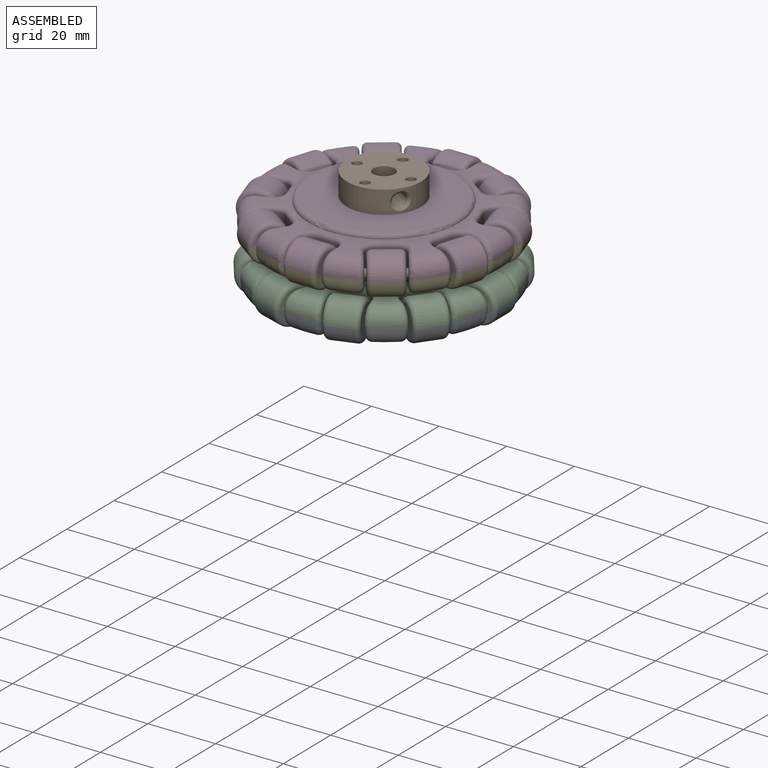
[diagram: assembled view]
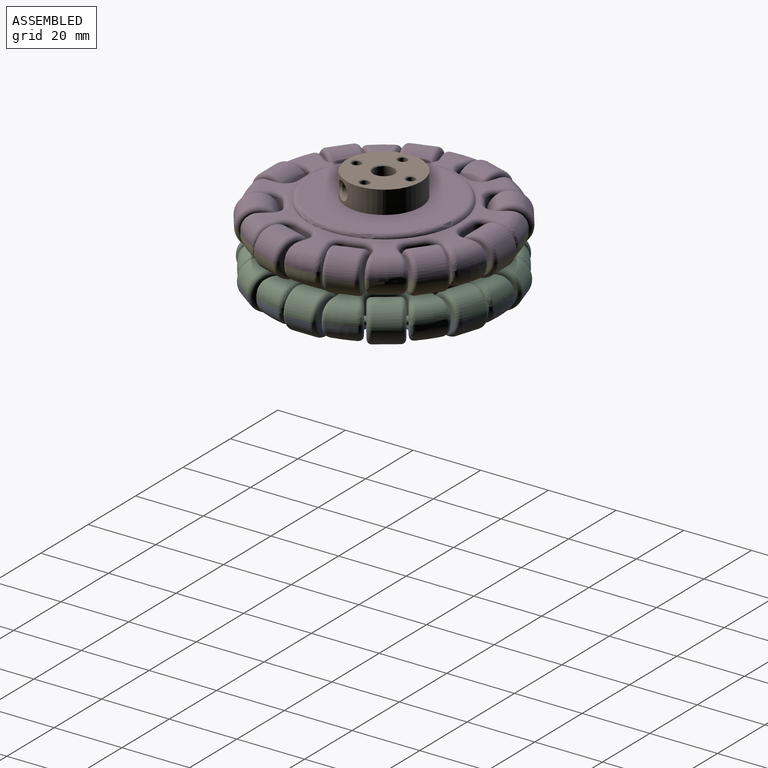
[diagram: assembled view, second angle]
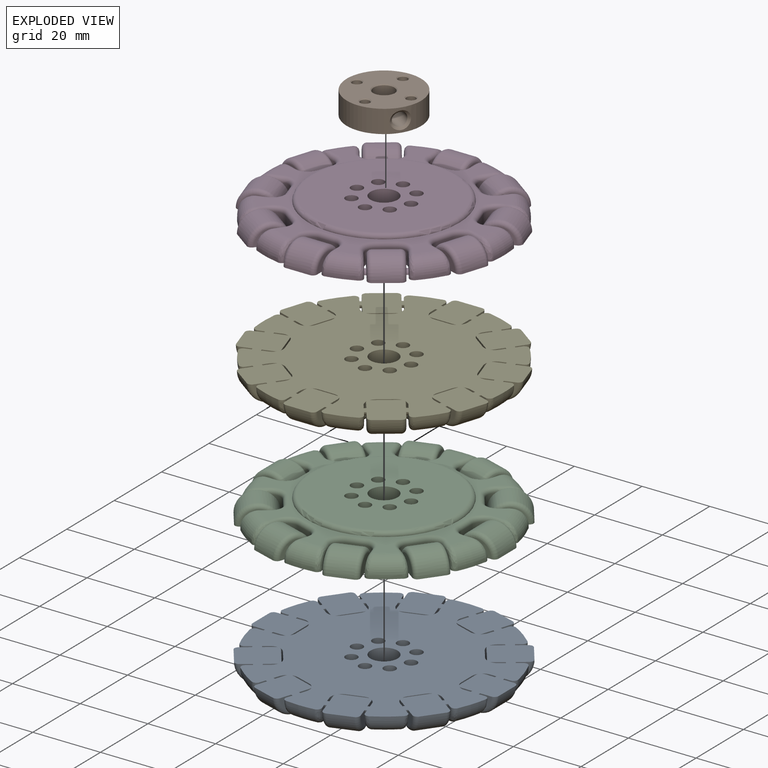
[diagram: exploded view]
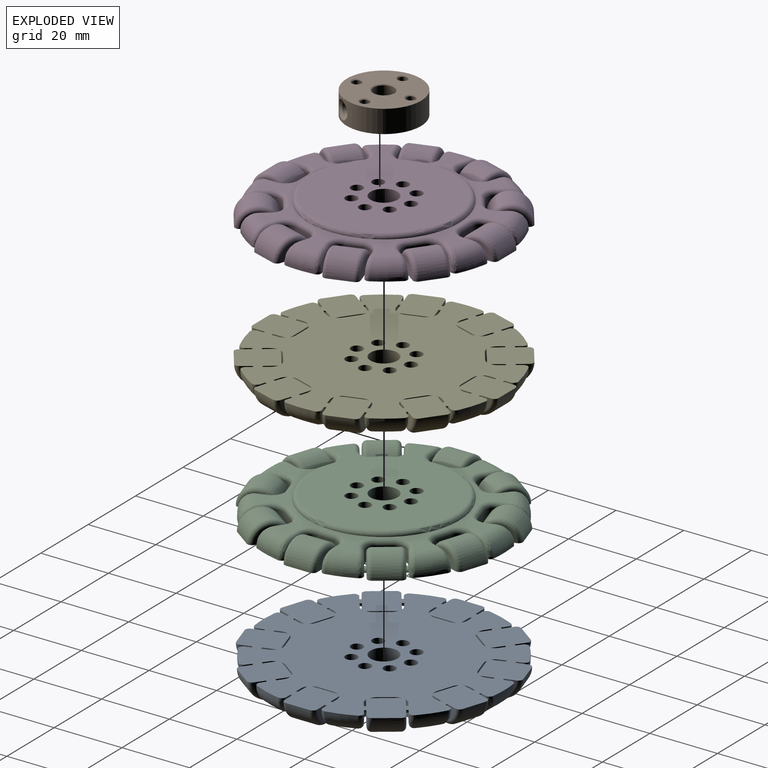
[diagram: exploded view, second angle]
ASSEMBLY  parts=5 mates=4
PART A: 243 faces, bbox 72.3x73.7x6.4 mm
  f0: torus R=20.96mm, axis (0,0,1), area 272.8mm2, adj f1,f80
  f1: plane 62.25x60.78mm, normal (0,0,-1), area 544.8mm2, adj f0,f2,f3,f4,f6,f7,f8,f9
  f2: cylinder r=1.27mm len=4.36mm, axis (0.81,0.59,0), area 8.9mm2, adj f1,f3,f20,f83
  f3: torus R=4.45mm, axis (0,0,1), area 11.4mm2, adj f1,f2,f4,f84
  f4: cylinder r=1.27mm len=2.99mm, axis (0.59,-0.81,0), area 5.5mm2, adj f1,f3,f5,f85
  f5: bspline ~4.45x3.93mm, area 13.7mm2, adj f4,f6,f85,f86
  f6: torus R=31.12mm, axis (0,0,-1), area 51.3mm2, adj f1,f5,f26,f87
  f7: torus R=31.12mm, axis (0,0,-1), area 51.3mm2, adj f1,f18,f33,f90
  f8: torus R=31.12mm, axis (0,0,-1), area 51.3mm2, adj f1,f23,f40,f93
  f9: torus R=31.12mm, axis (0,0,-1), area 51.3mm2, adj f1,f30,f47,f96
  f10: torus R=31.12mm, axis (0,0,-1), area 51.3mm2, adj f1,f37,f54,f99
  f11: torus R=31.12mm, axis (0,0,-1), area 51.3mm2, adj f1,f44,f61,f102
  f12: torus R=31.12mm, axis (0,0,-1), area 51.3mm2, adj f1,f51,f68,f105
  f13: torus R=31.12mm, axis (0,0,-1), area 51.3mm2, adj f1,f58,f71,f108
  f14: torus R=31.12mm, axis (0,0,-1), area 51.3mm2, adj f1,f65,f78,f111
  f15: torus R=31.12mm, axis (0,0,-1), area 51.3mm2, adj f1,f75,f82,f114
  f16: cylinder r=1.27mm len=4.64mm, axis (0.31,0.95,0), area 8.9mm2, adj f1,f17,f27,f120
  f17: torus R=4.45mm, axis (0,0,1), area 11.4mm2, adj f1,f16,f19,f122
  f18: bspline ~4.74x4.45mm, area 13.7mm2, adj f7,f19,f89,f123
  f19: cylinder r=1.27mm len=3.04mm, axis (0.95,-0.31,0), area 5.5mm2, adj f1,f17,f18,f123
  f20: torus R=4.45mm, axis (0,0,1), area 11.4mm2, adj f1,f2,f81,f127
  f21: cylinder r=1.27mm len=4.64mm, axis (-0.31,0.95,0), area 8.9mm2, adj f1,f22,f34,f128
  f22: torus R=4.45mm, axis (0,0,1), area 11.4mm2, adj f1,f21,f24,f130
  f23: bspline ~4.45x4.43mm, area 13.7mm2, adj f8,f24,f92,f131
  f24: cylinder r=1.27mm len=3.04mm, axis (0.95,0.31,0), area 5.5mm2, adj f1,f22,f23,f131
  f25: cylinder r=1.27mm len=3.04mm, axis (-0.95,0.31,0), area 5.5mm2, adj f1,f26,f27,f138
  f26: bspline ~4.45x4.43mm, area 13.7mm2, adj f6,f25,f88,f138
  f27: torus R=4.45mm, axis (0,0,1), area 11.4mm2, adj f1,f16,f25,f139
  f28: cylinder r=1.27mm len=4.36mm, axis (-0.81,0.59,0), area 8.9mm2, adj f1,f29,f41,f140
  f29: torus R=4.45mm, axis (0,0,1), area 11.4mm2, adj f1,f28,f31,f142
  f30: bspline ~4.52x4.45mm, area 13.7mm2, adj f9,f31,f95,f143
  f31: cylinder r=1.27mm len=2.99mm, axis (0.59,0.81,0), area 5.5mm2, adj f1,f29,f30,f143
  f32: cylinder r=1.27mm len=3.04mm, axis (-0.95,-0.31,0), area 5.5mm2, adj f1,f33,f34,f150
  f33: bspline ~4.74x4.45mm, area 13.7mm2, adj f7,f32,f91,f150
  f34: torus R=4.45mm, axis (0,0,1), area 11.4mm2, adj f1,f21,f32,f151
  f35: cylinder r=1.27mm len=4.47mm, axis (-1,0,0), area 8.9mm2, adj f1,f36,f48,f152
  f36: torus R=4.45mm, axis (0,0,1), area 11.4mm2, adj f1,f35,f38,f154
  f37: bspline ~4.54x4.45mm, area 13.7mm2, adj f10,f38,f98,f155
  f38: cylinder r=1.27mm len=2.78mm, axis (0,1,0), area 5.5mm2, adj f1,f36,f37,f155
  f39: cylinder r=1.27mm len=2.99mm, axis (-0.59,-0.81,0), area 5.5mm2, adj f1,f40,f41,f162
  f40: bspline ~4.45x3.93mm, area 13.7mm2, adj f8,f39,f94,f162
  f41: torus R=4.45mm, axis (0,0,1), area 11.4mm2, adj f1,f28,f39,f163
  f42: cylinder r=1.27mm len=4.36mm, axis (-0.81,-0.59,0), area 8.9mm2, adj f1,f43,f55,f164
  f43: torus R=4.45mm, axis (0,0,1), area 11.4mm2, adj f1,f42,f45,f166
  f44: bspline ~4.45x3.93mm, area 13.7mm2, adj f11,f45,f101,f167
  f45: cylinder r=1.27mm len=2.99mm, axis (-0.59,0.81,0), area 5.5mm2, adj f1,f43,f44,f167
  f46: cylinder r=1.27mm len=2.78mm, axis (0,-1,0), area 5.5mm2, adj f1,f47,f48,f174
  f47: bspline ~4.54x4.45mm, area 13.7mm2, adj f9,f46,f97,f174
  f48: torus R=4.45mm, axis (0,0,1), area 11.4mm2, adj f1,f35,f46,f175
  f49: cylinder r=1.27mm len=4.64mm, axis (-0.31,-0.95,0), area 8.9mm2, adj f1,f50,f62,f176
  f50: torus R=4.45mm, axis (0,0,1), area 11.4mm2, adj f1,f49,f52,f178
  f51: bspline ~4.74x4.45mm, area 13.7mm2, adj f12,f52,f104,f179
  f52: cylinder r=1.27mm len=3.04mm, axis (-0.95,0.31,0), area 5.5mm2, adj f1,f50,f51,f179
  f53: cylinder r=1.27mm len=2.99mm, axis (0.59,-0.81,0), area 5.5mm2, adj f1,f54,f55,f186
  f54: bspline ~4.52x4.45mm, area 13.7mm2, adj f10,f53,f100,f186
  f55: torus R=4.45mm, axis (0,0,1), area 11.4mm2, adj f1,f42,f53,f187
  f56: cylinder r=1.27mm len=4.64mm, axis (0.31,-0.95,0), area 8.9mm2, adj f1,f57,f69,f188
  f57: torus R=4.45mm, axis (0,0,1), area 11.4mm2, adj f1,f56,f59,f190
  f58: bspline ~4.45x4.43mm, area 13.7mm2, adj f13,f59,f107,f191
  f59: cylinder r=1.27mm len=3.04mm, axis (-0.95,-0.31,0), area 5.5mm2, adj f1,f57,f58,f191
  f60: cylinder r=1.27mm len=3.04mm, axis (0.95,-0.31,0), area 5.5mm2, adj f1,f61,f62,f198
  f61: bspline ~4.45x4.43mm, area 13.7mm2, adj f11,f60,f103,f198
  f62: torus R=4.45mm, axis (0,0,1), area 11.4mm2, adj f1,f49,f60,f199
  f63: cylinder r=1.27mm len=4.36mm, axis (0.81,-0.59,0), area 8.9mm2, adj f1,f64,f72,f200
  f64: torus R=4.45mm, axis (0,0,1), area 11.4mm2, adj f1,f63,f66,f202
  f65: bspline ~4.52x4.45mm, area 13.7mm2, adj f14,f66,f110,f203
  f66: cylinder r=1.27mm len=2.99mm, axis (-0.59,-0.81,0), area 5.5mm2, adj f1,f64,f65,f203
  f67: cylinder r=1.27mm len=3.04mm, axis (0.95,0.31,0), area 5.5mm2, adj f1,f68,f69,f210
  f68: bspline ~4.74x4.45mm, area 13.7mm2, adj f12,f67,f106,f210
  f69: torus R=4.45mm, axis (0,0,1), area 11.4mm2, adj f1,f56,f67,f211
  f70: cylinder r=1.27mm len=2.99mm, axis (0.59,0.81,0), area 5.5mm2, adj f1,f71,f72,f215
  f71: bspline ~4.45x3.93mm, area 13.7mm2, adj f13,f70,f109,f215
  f72: torus R=4.45mm, axis (0,0,1), area 11.4mm2, adj f1,f63,f70,f216
  f73: cylinder r=1.27mm len=4.47mm, axis (1,0,0), area 8.9mm2, adj f1,f74,f79,f217
  f74: torus R=4.45mm, axis (0,0,1), area 11.4mm2, adj f1,f73,f76,f219
  f75: bspline ~4.54x4.45mm, area 13.7mm2, adj f15,f76,f113,f220
  f76: cylinder r=1.27mm len=2.78mm, axis (0,-1,0), area 5.5mm2, adj f1,f74,f75,f220
  f77: cylinder r=1.27mm len=2.78mm, axis (0,1,0), area 5.5mm2, adj f1,f78,f79,f227
  f78: bspline ~4.54x4.45mm, area 13.7mm2, adj f14,f77,f112,f227
  f79: torus R=4.45mm, axis (0,0,1), area 11.4mm2, adj f1,f73,f77,f228
  f80: plane 42.69x41.91mm, normal (0,0,-1), area 1253.1mm2, adj f0,f229,f230,f231,f232,f233,f234,f235
  f81: cylinder r=1.27mm len=2.99mm, axis (-0.59,0.81,0), area 5.5mm2, adj f1,f20,f82,f238
  f82: bspline ~4.52x4.45mm, area 13.7mm2, adj f15,f81,f115,f238
  f83: plane 3.81x3.62mm, normal (-0.59,0.81,0), area 17mm2, adj f2,f84,f127,f240
  f84: cylinder r=3.17mm len=4.44mm, axis (0,0,1), area 18.3mm2, adj f3,f83,f85,f117,f240
  f85: plane 4.87x3.81mm, normal (0.81,0.59,0), area 18.5mm2, adj f4,f5,f84,f86,f119,f240
  f86: cylinder r=1.27mm len=1.96mm, axis (0,0,-1), area 1.4mm2, adj f5,f85,f87,f240
  f87: cylinder r=35.56mm len=6.78mm, axis (0,0,1), area 5.3mm2, adj f6,f86,f88,f240
  f88: cylinder r=1.27mm len=1.83mm, axis (0,0,1), area 1.4mm2, adj f26,f87,f138,f240
  f89: cylinder r=1.27mm len=1.65mm, axis (0,0,-1), area 1.4mm2, adj f18,f90,f123,f240
  f90: cylinder r=35.56mm len=8.38mm, axis (0,0,1), area 5.3mm2, adj f7,f89,f91,f240
  f91: cylinder r=1.27mm len=1.65mm, axis (0,0,1), area 1.4mm2, adj f33,f90,f150,f240
  f92: cylinder r=1.27mm len=1.83mm, axis (0,0,-1), area 1.4mm2, adj f23,f93,f131,f240
  f93: cylinder r=35.56mm len=6.78mm, axis (0,0,1), area 5.3mm2, adj f8,f92,f94,f240
  f94: cylinder r=1.27mm len=1.96mm, axis (0,0,1), area 1.4mm2, adj f40,f93,f162,f240
  f95: cylinder r=1.27mm len=1.9mm, axis (0,0,-1), area 1.4mm2, adj f30,f96,f143,f240
  f96: cylinder r=35.56mm len=7.97mm, axis (0,0,1), area 5.3mm2, adj f9,f95,f97,f240
  f97: cylinder r=1.27mm len=1.52mm, axis (0,0,1), area 1.4mm2, adj f47,f96,f174,f240
  f98: cylinder r=1.27mm len=1.52mm, axis (0,0,-1), area 1.4mm2, adj f37,f99,f155,f240
  f99: cylinder r=35.56mm len=7.97mm, axis (0,0,1), area 5.3mm2, adj f10,f98,f100,f240
  f100: cylinder r=1.27mm len=1.9mm, axis (0,0,1), area 1.4mm2, adj f54,f99,f186,f240
  f101: cylinder r=1.27mm len=1.96mm, axis (0,0,-1), area 1.4mm2, adj f44,f102,f167,f240
  f102: cylinder r=35.56mm len=6.78mm, axis (0,0,1), area 5.3mm2, adj f11,f101,f103,f240
  f103: cylinder r=1.27mm len=1.83mm, axis (0,0,1), area 1.4mm2, adj f61,f102,f198,f240
  f104: cylinder r=1.27mm len=1.65mm, axis (0,0,-1), area 1.4mm2, adj f51,f105,f179,f240
  f105: cylinder r=35.56mm len=8.38mm, axis (0,0,1), area 5.3mm2, adj f12,f104,f106,f240
  f106: cylinder r=1.27mm len=1.65mm, axis (0,0,1), area 1.4mm2, adj f68,f105,f210,f240
  f107: cylinder r=1.27mm len=1.83mm, axis (0,0,-1), area 1.4mm2, adj f58,f108,f191,f240
  f108: cylinder r=35.56mm len=6.78mm, axis (0,0,1), area 5.3mm2, adj f13,f107,f109,f240
  f109: cylinder r=1.27mm len=1.96mm, axis (0,0,1), area 1.4mm2, adj f71,f108,f215,f240
  f110: cylinder r=1.27mm len=1.9mm, axis (0,0,-1), area 1.4mm2, adj f65,f111,f203,f240
  f111: cylinder r=35.56mm len=7.97mm, axis (0,0,1), area 5.3mm2, adj f14,f110,f112,f240
  f112: cylinder r=1.27mm len=1.52mm, axis (0,0,1), area 1.4mm2, adj f78,f111,f227,f240
  f113: cylinder r=1.27mm len=1.52mm, axis (0,0,-1), area 1.4mm2, adj f75,f114,f220,f240
  f114: cylinder r=35.56mm len=7.97mm, axis (0,0,1), area 5.3mm2, adj f15,f113,f115,f240
  f115: cylinder r=1.27mm len=1.9mm, axis (0,0,1), area 1.4mm2, adj f82,f114,f238,f240
  f116: cylinder r=5.75mm len=13.46mm, axis (-0.81,-0.59,0), area 127.8mm2, adj f117,f239,f240
  f117: torus R=4.48mm, axis (-0.81,-0.59,0), area 32.4mm2, adj f84,f116,f118,f240
  f118: plane 7.25x5.26mm, normal (-0.81,-0.59,0), area 29.3mm2, adj f117,f119,f240
  f119: cylinder r=1.19mm len=2.27mm, axis (-0.81,-0.59,0), area 2.2mm2, adj f85,f118,f240
  f120: plane 4.25x3.81mm, normal (-0.95,0.31,0), area 17mm2, adj f16,f122,f139,f240
  f121: cylinder r=5.75mm len=13.12mm, axis (-0.31,-0.95,0), area 127.8mm2, adj f126,f135,f240
  f122: cylinder r=3.17mm len=4mm, axis (0,0,1), area 18.3mm2, adj f17,f120,f123,f126,f240
  f123: plane 5.73x3.81mm, normal (0.31,0.95,0), area 18.5mm2, adj f18,f19,f89,f122,f124,f240
  f124: cylinder r=1.19mm len=2.45mm, axis (-0.31,-0.95,0), area 2.2mm2, adj f123,f125,f240
  f125: plane 8.52x4.51mm, normal (-0.31,-0.95,0), area 29.3mm2, adj f124,f126,f240
  f126: torus R=4.48mm, axis (-0.31,-0.95,0), area 32.3mm2, adj f121,f122,f125,f240
  f127: cylinder r=3.17mm len=4.44mm, axis (0,0,1), area 18.3mm2, adj f20,f83,f238,f239,f240
  f128: plane 4.25x3.81mm, normal (-0.95,-0.31,0), area 17mm2, adj f21,f130,f151,f240
  f129: cylinder r=5.75mm len=13.12mm, axis (0.31,-0.95,0), area 127.8mm2, adj f134,f147,f240
  f130: cylinder r=3.17mm len=4mm, axis (0,0,1), area 18.3mm2, adj f22,f128,f131,f134,f240
  f131: plane 5.73x3.81mm, normal (-0.31,0.95,0), area 18.5mm2, adj f23,f24,f92,f130,f132,f240
  f132: cylinder r=1.19mm len=2.45mm, axis (0.31,-0.95,0), area 2.2mm2, adj f131,f133,f240
  f133: plane 8.52x4.51mm, normal (0.31,-0.95,0), area 29.3mm2, adj f132,f134,f240
  f134: torus R=4.48mm, axis (0.31,-0.95,0), area 32.4mm2, adj f129,f130,f133,f240
  f135: torus R=4.48mm, axis (-0.31,-0.95,0), area 32.4mm2, adj f121,f136,f139,f240
  f136: plane 8.52x4.56mm, normal (0.31,0.95,0), area 29.3mm2, adj f135,f137,f240
  f137: cylinder r=1.19mm len=2.45mm, axis (-0.31,-0.95,0), area 2.2mm2, adj f136,f138,f240
  f138: plane 5.73x3.81mm, normal (-0.31,-0.95,0), area 18.5mm2, adj f25,f26,f88,f137,f139,f240
  f139: cylinder r=3.17mm len=4mm, axis (0,0,1), area 18.3mm2, adj f27,f120,f135,f138,f240
  f140: plane 3.81x3.62mm, normal (-0.59,-0.81,0), area 17mm2, adj f28,f142,f163,f240
  f141: cylinder r=5.75mm len=13.46mm, axis (0.81,-0.59,0), area 127.8mm2, adj f146,f159,f240
  f142: cylinder r=3.17mm len=4.44mm, axis (0,0,1), area 18.3mm2, adj f29,f140,f143,f146,f240
  f143: plane 4.87x3.81mm, normal (-0.81,0.59,0), area 18.5mm2, adj f30,f31,f95,f142,f144,f240
  f144: cylinder r=1.19mm len=2.27mm, axis (0.81,-0.59,0), area 2.2mm2, adj f143,f145,f240
  f145: plane 7.25x5.26mm, normal (0.81,-0.59,0), area 29.3mm2, adj f144,f146,f240
  f146: torus R=4.48mm, axis (0.81,-0.59,0), area 32.3mm2, adj f141,f142,f145,f240
  f147: torus R=4.48mm, axis (0.31,-0.95,0), area 32.4mm2, adj f129,f148,f151,f240
  f148: plane 8.52x4.56mm, normal (-0.31,0.95,0), area 29.3mm2, adj f147,f149,f240
  f149: cylinder r=1.19mm len=2.45mm, axis (0.31,-0.95,0), area 2.2mm2, adj f148,f150,f240
  f150: plane 5.73x3.81mm, normal (0.31,-0.95,0), area 18.5mm2, adj f32,f33,f91,f149,f151,f240
  f151: cylinder r=3.17mm len=4mm, axis (0,0,1), area 18.3mm2, adj f34,f128,f147,f150,f240
  f152: plane 4.47x3.81mm, normal (0,-1,0), area 17mm2, adj f35,f154,f175,f240
  f153: cylinder r=5.75mm len=11.5mm, axis (1,0,0), area 127.8mm2, adj f158,f171,f240
  f154: cylinder r=3.17mm len=3.81mm, axis (0,0,1), area 18.3mm2, adj f36,f152,f155,f158,f240
  f155: plane 6.02x3.81mm, normal (-1,0,0), area 18.5mm2, adj f37,f38,f98,f154,f156,f240
  f156: cylinder r=1.19mm len=2.38mm, axis (1,0,0), area 2.2mm2, adj f155,f157,f240
  f157: plane 8.96x4.51mm, normal (1,0,0), area 29.3mm2, adj f156,f158,f240
  f158: torus R=4.48mm, axis (1,0,0), area 32.4mm2, adj f153,f154,f157,f240
  f159: torus R=4.48mm, axis (0.81,-0.59,0), area 32.4mm2, adj f141,f160,f163,f240
  f160: plane 7.25x5.26mm, normal (-0.81,0.59,0), area 29.3mm2, adj f159,f161,f240
  f161: cylinder r=1.19mm len=2.27mm, axis (0.81,-0.59,0), area 2.2mm2, adj f160,f162,f240
  f162: plane 4.87x3.81mm, normal (0.81,-0.59,0), area 18.5mm2, adj f39,f40,f94,f161,f163,f240
  f163: cylinder r=3.17mm len=4.44mm, axis (0,0,1), area 18.3mm2, adj f41,f140,f159,f162,f240
  f164: plane 3.81x3.62mm, normal (0.59,-0.81,0), area 17mm2, adj f42,f166,f187,f240
  f165: cylinder r=5.75mm len=13.46mm, axis (0.81,0.59,0), area 127.8mm2, adj f170,f183,f240
  f166: cylinder r=3.17mm len=4.44mm, axis (0,0,1), area 18.3mm2, adj f43,f164,f167,f170,f240
  f167: plane 4.87x3.81mm, normal (-0.81,-0.59,0), area 18.5mm2, adj f44,f45,f101,f166,f168,f240
  f168: cylinder r=1.19mm len=2.27mm, axis (0.81,0.59,0), area 2.2mm2, adj f167,f169,f240
  f169: plane 7.25x5.26mm, normal (0.81,0.59,0), area 29.3mm2, adj f168,f170,f240
  f170: torus R=4.48mm, axis (0.81,0.59,0), area 32.4mm2, adj f165,f166,f169,f240
  f171: torus R=4.48mm, axis (1,0,0), area 32.4mm2, adj f153,f172,f175,f240
  f172: plane 8.96x4.56mm, normal (-1,0,0), area 29.3mm2, adj f171,f173,f240
  f173: cylinder r=1.19mm len=2.38mm, axis (1,0,0), area 2.2mm2, adj f172,f174,f240
  f174: plane 6.02x3.81mm, normal (1,0,0), area 18.5mm2, adj f46,f47,f97,f173,f175,f240
  f175: cylinder r=3.17mm len=3.81mm, axis (0,0,1), area 18.3mm2, adj f48,f152,f171,f174,f240
  f176: plane 4.25x3.81mm, normal (0.95,-0.31,0), area 17mm2, adj f49,f178,f199,f240
  f177: cylinder r=5.75mm len=13.12mm, axis (0.31,0.95,0), area 127.8mm2, adj f182,f195,f240
  f178: cylinder r=3.17mm len=4mm, axis (0,0,1), area 18.3mm2, adj f50,f176,f179,f182,f240
  f179: plane 5.73x3.81mm, normal (-0.31,-0.95,0), area 18.5mm2, adj f51,f52,f104,f178,f180,f240
  f180: cylinder r=1.19mm len=2.45mm, axis (0.31,0.95,0), area 2.2mm2, adj f179,f181,f240
  f181: plane 8.52x4.51mm, normal (0.31,0.95,0), area 29.3mm2, adj f180,f182,f240
  f182: torus R=4.48mm, axis (0.31,0.95,0), area 32.3mm2, adj f177,f178,f181,f240
  f183: torus R=4.48mm, axis (0.81,0.59,0), area 32.4mm2, adj f165,f184,f187,f240
  f184: plane 7.25x5.26mm, normal (-0.81,-0.59,0), area 29.3mm2, adj f183,f185,f240
  f185: cylinder r=1.19mm len=2.27mm, axis (0.81,0.59,0), area 2.2mm2, adj f184,f186,f240
  f186: plane 4.87x3.81mm, normal (0.81,0.59,0), area 18.5mm2, adj f53,f54,f100,f185,f187,f240
  f187: cylinder r=3.17mm len=4.44mm, axis (0,0,1), area 18.3mm2, adj f55,f164,f183,f186,f240
  f188: plane 4.25x3.81mm, normal (0.95,0.31,0), area 17mm2, adj f56,f190,f211,f240
  f189: cylinder r=5.75mm len=13.12mm, axis (-0.31,0.95,0), area 127.8mm2, adj f194,f207,f240
  f190: cylinder r=3.17mm len=4mm, axis (0,0,1), area 18.3mm2, adj f57,f188,f191,f194,f240
  f191: plane 5.73x3.81mm, normal (0.31,-0.95,0), area 18.5mm2, adj f58,f59,f107,f190,f192,f240
  f192: cylinder r=1.19mm len=2.45mm, axis (-0.31,0.95,0), area 2.2mm2, adj f191,f193,f240
  f193: plane 8.52x4.51mm, normal (-0.31,0.95,0), area 29.3mm2, adj f192,f194,f240
  f194: torus R=4.48mm, axis (-0.31,0.95,0), area 32.4mm2, adj f189,f190,f193,f240
  f195: torus R=4.48mm, axis (0.31,0.95,0), area 32.4mm2, adj f177,f196,f199,f240
  f196: plane 8.52x4.56mm, normal (-0.31,-0.95,0), area 29.3mm2, adj f195,f197,f240
  f197: cylinder r=1.19mm len=2.45mm, axis (0.31,0.95,0), area 2.2mm2, adj f196,f198,f240
  f198: plane 5.73x3.81mm, normal (0.31,0.95,0), area 18.5mm2, adj f60,f61,f103,f197,f199,f240
  f199: cylinder r=3.17mm len=4mm, axis (0,0,1), area 18.3mm2, adj f62,f176,f195,f198,f240
  f200: plane 3.81x3.62mm, normal (0.59,0.81,0), area 17mm2, adj f63,f202,f216,f240
  f201: cylinder r=5.75mm len=13.46mm, axis (-0.81,0.59,0), area 127.8mm2, adj f206,f212,f240
  f202: cylinder r=3.17mm len=4.44mm, axis (0,0,1), area 18.3mm2, adj f64,f200,f203,f206,f240
  f203: plane 4.87x3.81mm, normal (0.81,-0.59,0), area 18.5mm2, adj f65,f66,f110,f202,f204,f240
  f204: cylinder r=1.19mm len=2.27mm, axis (-0.81,0.59,0), area 2.2mm2, adj f203,f205,f240
  f205: plane 7.25x5.26mm, normal (-0.81,0.59,0), area 29.3mm2, adj f204,f206,f240
  f206: torus R=4.48mm, axis (-0.81,0.59,0), area 32.3mm2, adj f201,f202,f205,f240
  f207: torus R=4.48mm, axis (-0.31,0.95,0), area 32.4mm2, adj f189,f208,f211,f240
  f208: plane 8.52x4.56mm, normal (0.31,-0.95,0), area 29.3mm2, adj f207,f209,f240
  f209: cylinder r=1.19mm len=2.45mm, axis (-0.31,0.95,0), area 2.2mm2, adj f208,f210,f240
  f210: plane 5.73x3.81mm, normal (-0.31,0.95,0), area 18.5mm2, adj f67,f68,f106,f209,f211,f240
  f211: cylinder r=3.17mm len=4mm, axis (0,0,1), area 18.3mm2, adj f69,f188,f207,f210,f240
  f212: torus R=4.48mm, axis (-0.81,0.59,0), area 32.4mm2, adj f201,f213,f216,f240
  f213: plane 7.25x5.26mm, normal (0.81,-0.59,0), area 29.3mm2, adj f212,f214,f240
  f214: cylinder r=1.19mm len=2.27mm, axis (-0.81,0.59,0), area 2.2mm2, adj f213,f215,f240
  f215: plane 4.87x3.81mm, normal (-0.81,0.59,0), area 18.5mm2, adj f70,f71,f109,f214,f216,f240
  f216: cylinder r=3.17mm len=4.44mm, axis (0,0,1), area 18.3mm2, adj f72,f200,f212,f215,f240
  f217: plane 4.47x3.81mm, normal (0,1,0), area 17mm2, adj f73,f219,f228,f240
  f218: cylinder r=5.75mm len=11.5mm, axis (-1,0,0), area 127.8mm2, adj f223,f224,f240
  f219: cylinder r=3.17mm len=3.81mm, axis (0,0,1), area 18.3mm2, adj f74,f217,f220,f223,f240
  f220: plane 6.02x3.81mm, normal (1,0,0), area 18.5mm2, adj f75,f76,f113,f219,f221,f240
  f221: cylinder r=1.19mm len=2.38mm, axis (-1,0,0), area 2.2mm2, adj f220,f222,f240
  f222: plane 8.96x4.51mm, normal (-1,0,0), area 29.3mm2, adj f221,f223,f240
  f223: torus R=4.48mm, axis (-1,0,0), area 32.6mm2, adj f218,f219,f222,f240
  f224: torus R=4.48mm, axis (-1,0,0), area 32.5mm2, adj f218,f225,f228,f240
  f225: plane 8.96x4.56mm, normal (1,0,0), area 29.3mm2, adj f224,f226,f240
  f226: cylinder r=1.19mm len=2.38mm, axis (-1,0,0), area 2.2mm2, adj f225,f227,f240
  f227: plane 6.02x3.81mm, normal (-1,0,0), area 18.5mm2, adj f77,f78,f112,f226,f228,f240
  f228: cylinder r=3.17mm len=3.81mm, axis (0,0,1), area 18.3mm2, adj f79,f217,f224,f227,f240
  f229: cylinder r=1.74mm len=6.35mm, axis (0,0,-1), area 69.4mm2, adj f80,f240
  f230: cylinder r=1.74mm len=6.35mm, axis (0,0,-1), area 69.4mm2, adj f80,f240
  f231: cylinder r=1.74mm len=6.35mm, axis (0,0,-1), area 69.4mm2, adj f80,f240
  f232: cylinder r=1.74mm len=6.35mm, axis (0,0,-1), area 69.4mm2, adj f80,f240
  f233: cylinder r=1.74mm len=6.35mm, axis (0,0,-1), area 69.4mm2, adj f80,f240
  f234: cylinder r=1.74mm len=6.35mm, axis (0,0,-1), area 69.4mm2, adj f80,f240
  f235: cylinder r=1.74mm len=6.35mm, axis (0,0,-1), area 69.4mm2, adj f80,f240
  f236: cylinder r=1.74mm len=6.35mm, axis (0,0,-1), area 69.4mm2, adj f80,f240
  f237: cylinder r=4mm len=8mm, axis (0,0,-1), area 159.6mm2, adj f80,f240
  f238: plane 4.87x3.81mm, normal (-0.81,-0.59,0), area 18.5mm2, adj f81,f82,f115,f127,f240,f241
  f239: torus R=4.48mm, axis (-0.81,-0.59,0), area 32.4mm2, adj f116,f127,f240,f242
  f240: plane 72.74x71.54mm, normal (0,0,1), area 3810.3mm2, adj f83,f84,f85,f86,f87,f88,f89,f90
  f241: cylinder r=1.19mm len=2.27mm, axis (-0.81,-0.59,0), area 2.2mm2, adj f238,f240,f242
  f242: plane 7.25x5.26mm, normal (0.81,0.59,0), area 29.3mm2, adj f239,f240,f241
PART B: 24 faces, bbox 22.4x22.2x9.5 mm
  f0: cylinder r=3.05mm len=9mm, axis (0,0,-1), area 160.3mm2, adj f1,f2,f3
  f1: cone r=3.3mm half-angle=45deg, axis (0,0,1), area 7.1mm2, adj f0,f4
  f2: cone r=3.3mm half-angle=45deg, axis (0,0,-1), area 7.1mm2, adj f0,f9
  f3: cylinder r=2.02mm len=9.01mm, axis (0.84,0.54,0), area 95.6mm2, adj f0,f10,f11
  f4: plane 7.6x7.5mm, normal (0,0,1), area 10mm2, adj f1,f12
  f5: cone r=1.6mm half-angle=45deg, axis (0,0,-1), area 3.3mm2, adj f9,f13
  f6: cone r=1.6mm half-angle=45deg, axis (0,0,-1), area 3.3mm2, adj f9,f14
  f7: cone r=1.6mm half-angle=45deg, axis (0,0,-1), area 3.3mm2, adj f9,f15
  f8: cone r=1.6mm half-angle=45deg, axis (0,0,-1), area 3.3mm2, adj f9,f16
  f9: plane 22.41x22.2mm, normal (0,0,-1), area 313.7mm2, adj f2,f5,f6,f7,f8,f17
  f10: bspline ~4.65x3.1mm, area 6.7mm2, adj f3,f11,f17
  f11: bspline ~4.65x3.1mm, area 6.7mm2, adj f3,f10,f17
  f12: cone r=4mm half-angle=45deg, axis (0,0,-1), area 8.6mm2, adj f4,f18
  f13: cylinder r=1.35mm len=6.25mm, axis (0,0,-1), area 53.1mm2, adj f5,f19
  f14: cylinder r=1.35mm len=6.25mm, axis (0,0,-1), area 53.1mm2, adj f6,f20
  f15: cylinder r=1.35mm len=6.25mm, axis (0,0,-1), area 53.1mm2, adj f7,f21
  f16: cylinder r=1.35mm len=6.25mm, axis (0,0,-1), area 53.1mm2, adj f8,f22
  f17: cylinder r=11mm len=22mm, axis (0,0,1), area 466.5mm2, adj f9,f10,f11,f23
  f18: cylinder r=4mm len=8mm, axis (0,0,1), area 62.8mm2, adj f12,f23
  f19: cone r=1.6mm half-angle=45deg, axis (0,0,1), area 3.3mm2, adj f13,f23
  f20: cone r=1.6mm half-angle=45deg, axis (0,0,1), area 3.3mm2, adj f14,f23
  f21: cone r=1.6mm half-angle=45deg, axis (0,0,1), area 3.3mm2, adj f15,f23
  f22: cone r=1.6mm half-angle=45deg, axis (0,0,1), area 3.3mm2, adj f16,f23
  f23: plane 22.41x22.2mm, normal (0,0,1), area 297.6mm2, adj f17,f18,f19,f20,f21,f22
PART C: same geometry as A
PART D: same geometry as A
PART E: same geometry as A
PLACE A rot(axis=(0,0,-1),90deg) t=(-26.07,-8.79,-5.19)mm
PLACE B rot(axis=(1,0,0),180deg) t=(-26.07,-8.79,18.94)mm
PLACE C rot(axis=(0.71,-0.71,0),180deg) t=(-26.07,-8.79,4.97)mm
PLACE D rot(axis=(1,0,0),180deg) t=(-26.07,-8.79,17.67)mm
PLACE E t=(-26.07,-8.79,7.51)mm
MATE fastened B.f1 <-> D.f0  axis (0,0,-1) through (-26.07,-8.79,18.94)mm
MATE fastened A.f0 <-> C.f0  axis (0,0,1) through (-26.07,-8.79,-0.11)mm
MATE fastened D.f0 <-> E.f0  axis (0,0,-1) through (-26.07,-8.79,12.59)mm
MATE fastened C.f0 <-> E.f0  axis (0,0,1) through (-26.07,-8.79,6.24)mm
